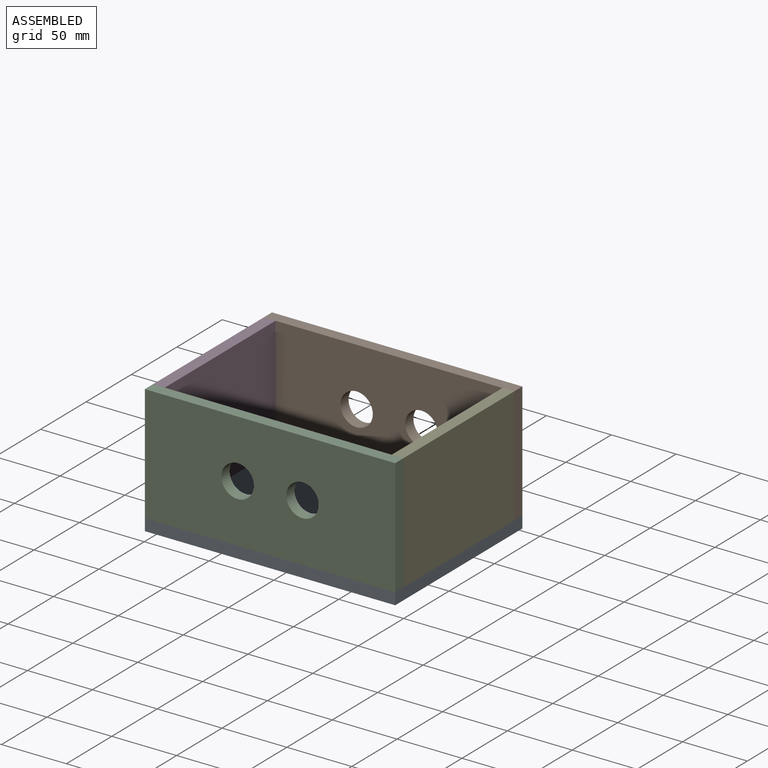
[diagram: assembled view]
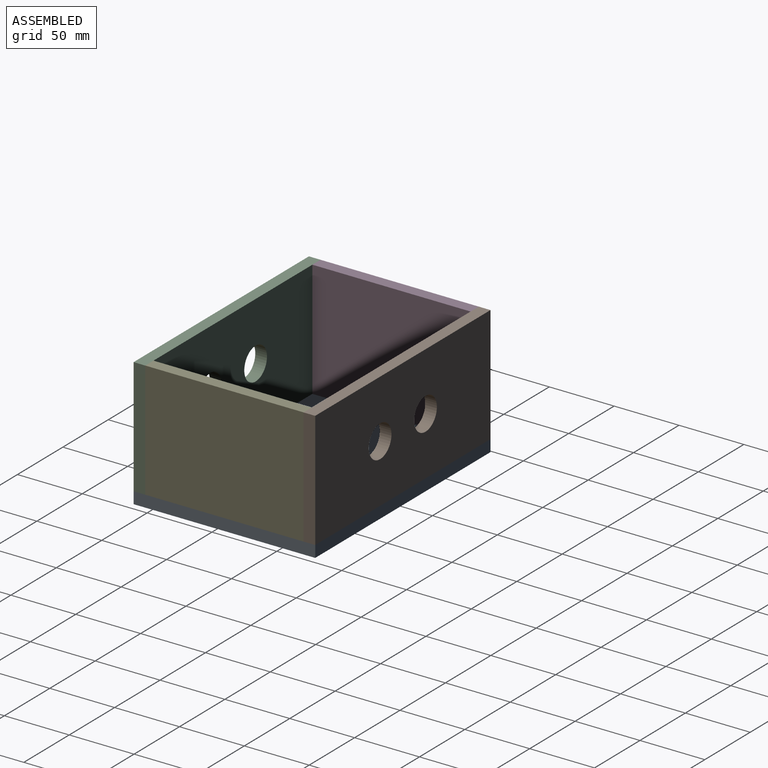
[diagram: assembled view, second angle]
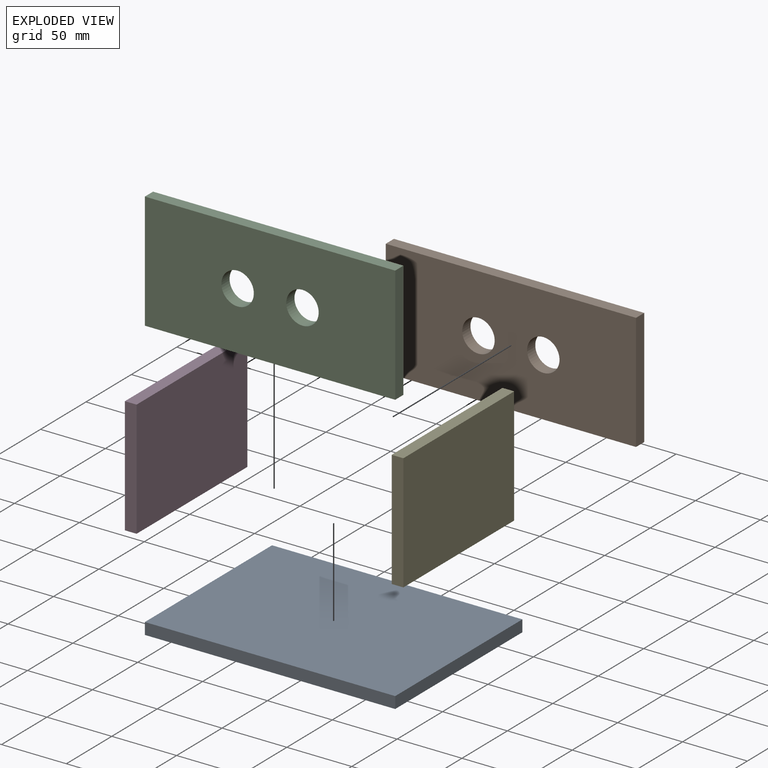
[diagram: exploded view]
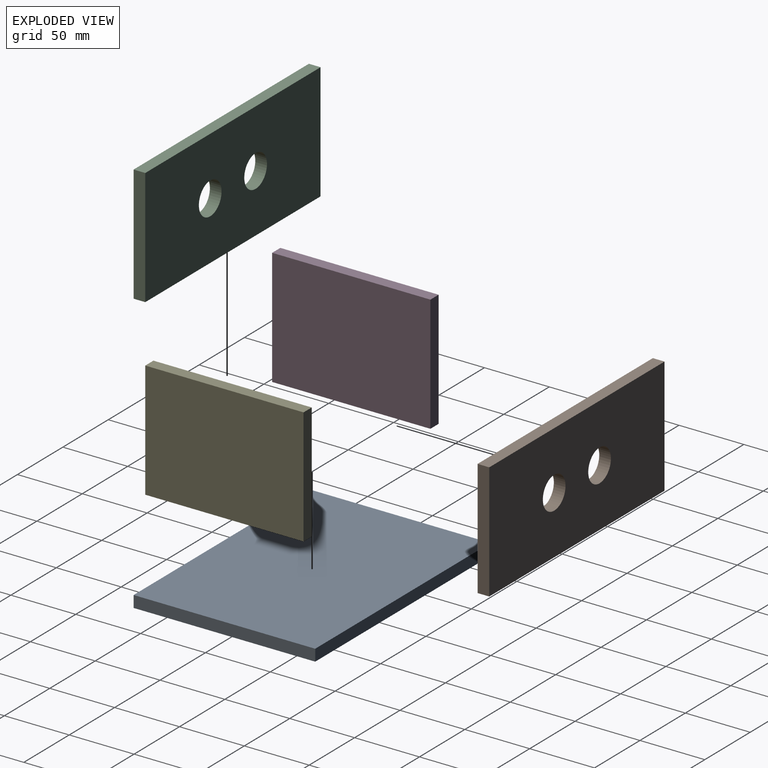
[diagram: exploded view, second angle]
ASSEMBLY  parts=5 mates=4
PART A: 6 faces, bbox 140x193x9 mm
  f0: plane 193x9mm, normal (1,0,0), area 1737mm2, adj f1,f3,f4,f5
  f1: plane 140x9mm, normal (0,1,0), area 1260mm2, adj f0,f2,f4,f5
  f2: plane 193x9mm, normal (-1,0,0), area 1737mm2, adj f1,f3,f4,f5
  f3: plane 140x9mm, normal (0,-1,0), area 1260mm2, adj f0,f2,f4,f5
  f4: plane 193x140mm, normal (0,0,1), area 27020mm2, adj f0,f1,f2,f3
  f5: plane 193x140mm, normal (0,0,-1), area 27020mm2, adj f0,f1,f2,f3
PART B: 8 faces, bbox 9x193x90 mm
  f0: plane 90x9mm, normal (0,1,0), area 810mm2, adj f1,f3,f6,f7
  f1: plane 193x9mm, normal (0,0,1), area 1737mm2, adj f0,f2,f6,f7
  f2: plane 90x9mm, normal (0,-1,0), area 810mm2, adj f1,f3,f6,f7
  f3: plane 193x9mm, normal (0,0,-1), area 1737mm2, adj f0,f2,f6,f7
  f4: cylinder r=12.5mm len=25mm, axis (1,0,0), area 706.9mm2, adj f6,f7
  f5: cylinder r=12.5mm len=25mm, axis (1,0,0), area 706.9mm2, adj f6,f7
  f6: plane 193x90mm, normal (1,0,0), area 16388.3mm2, adj f0,f1,f2,f3,f4,f5
  f7: plane 193x90mm, normal (-1,0,0), area 16388.3mm2, adj f0,f1,f2,f3,f4,f5
PART C: same geometry as B
PART D: 6 faces, bbox 122x9x90 mm
  f0: plane 90x9mm, normal (1,0,0), area 810mm2, adj f1,f3,f4,f5
  f1: plane 122x9mm, normal (0,0,1), area 1098mm2, adj f0,f2,f4,f5
  f2: plane 90x9mm, normal (-1,0,0), area 810mm2, adj f1,f3,f4,f5
  f3: plane 122x9mm, normal (0,0,-1), area 1098mm2, adj f0,f2,f4,f5
  f4: plane 122x90mm, normal (0,-1,0), area 10980mm2, adj f0,f1,f2,f3
  f5: plane 122x90mm, normal (0,1,0), area 10980mm2, adj f0,f1,f2,f3
PART E: same geometry as D
PLACE A rot(axis=(0,0,-1),90deg) t=(-264.97,169.27,-72.7)mm
PLACE B rot(axis=(0,0,-1),90deg) t=(-264.97,169.27,-63.7)mm
PLACE C rot(axis=(0,0,-1),90deg) t=(-264.97,38.27,-63.7)mm
PLACE D rot(axis=(0,0,-1),90deg) t=(-255.97,160.27,-63.7)mm
PLACE E rot(axis=(0,0,-1),90deg) t=(-71.97,160.27,-63.7)mm
MATE fastened C.f7 <-> D.f0  axis (0,1,0) through (-264.97,38.27,-63.7)mm
MATE fastened E.f2 <-> B.f6  axis (0,1,0) through (-71.97,160.27,-63.7)mm
MATE fastened B.f6 <-> D.f2  axis (0,-1,0) through (-264.97,160.27,-63.7)mm
MATE fastened A.f4 <-> C.f3  axis (0,0,1) through (-71.97,29.27,-63.7)mm
